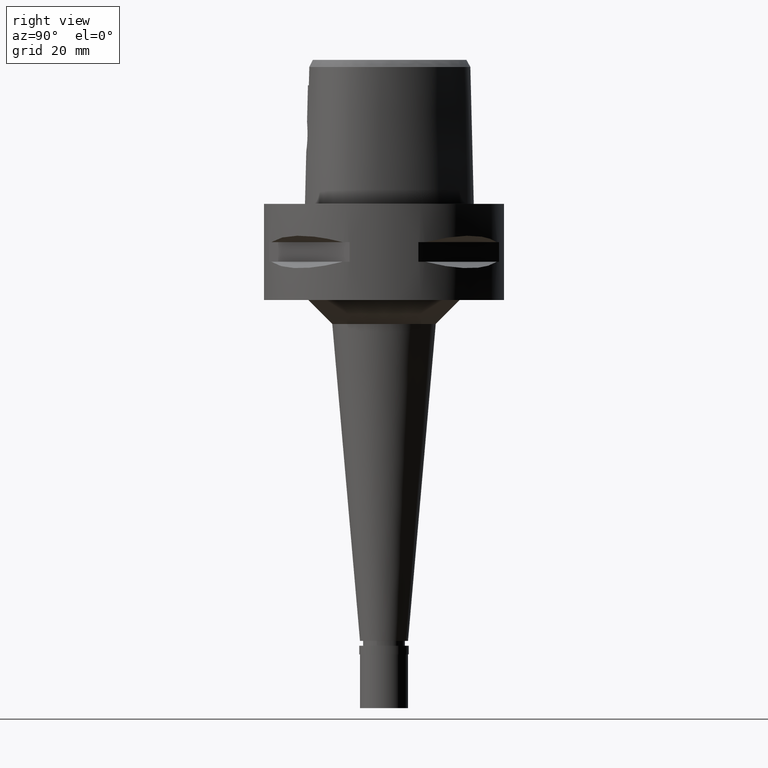
[diagram: clean part render]
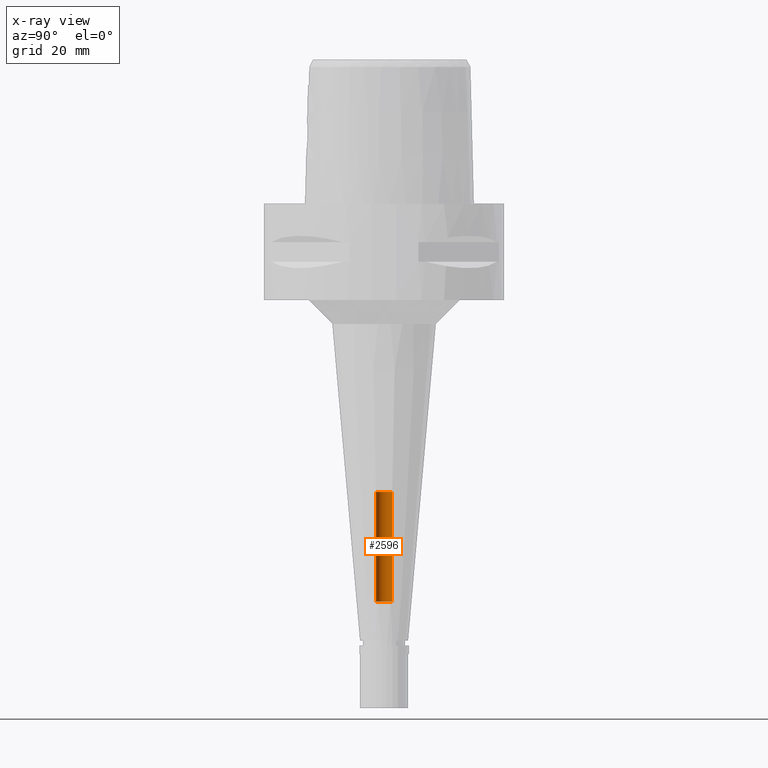
[diagram: x-ray — body ghosted, one internal face saturated and labeled with its STEP entity id]
A machine part, right view, then the same camera in x-ray: the body is ghosted and one INTERNAL B-rep face — a face not visible from any outside direction — is saturated and labeled: STEP entity #2596.
In plain terms, the highlighted cylindrical surface (edge-blend (fillet) strip) has radius 1.7 mm, axis along (0, 0, -1).
Its self-contained STEP definition (entity closure, byte-faithful):
#15 = AXIS2_PLACEMENT_3D ( 'NONE', #3494, #4583, #1329 ) ;
#97 = EDGE_CURVE ( 'NONE', #2903, #3445, #351, .T. ) ;
#161 = DIRECTION ( 'NONE',  ( 0.0000000000000000000, 0.0000000000000000000, -1.000000000000000000 ) ) ;
#351 = LINE ( 'NONE', #3286, #2826 ) ;
#445 = CARTESIAN_POINT ( 'NONE',  ( 0.0000000000000000000, 1.699999999999999956, -60.00000000000000000 ) ) ;
#555 = DIRECTION ( 'NONE',  ( 0.0000000000000000000, -1.000000000000000000, 0.0000000000000000000 ) ) ;
#666 = ORIENTED_EDGE ( 'NONE', *, *, #97, .T. ) ;
#1050 = EDGE_CURVE ( 'NONE', #4033, #2260, #1116, .T. ) ;
#1116 = LINE ( 'NONE', #1374, #1815 ) ;
#1123 = CARTESIAN_POINT ( 'NONE',  ( 0.0000000000000000000, 1.699999999999999956, -82.79999999999999716 ) ) ;
#1329 = DIRECTION ( 'NONE',  ( 0.0000000000000000000, -1.000000000000000000, 0.0000000000000000000 ) ) ;
#1374 = CARTESIAN_POINT ( 'NONE',  ( 0.0000000000000000000, -1.699999999999999956, -82.79999999999999716 ) ) ;
#1518 = CARTESIAN_POINT ( 'NONE',  ( 0.0000000000000000000, 1.286675159523999830E-14, -60.00000000000000000 ) ) ;
#1539 = DIRECTION ( 'NONE',  ( 0.0000000000000000000, 0.0000000000000000000, 1.000000000000000000 ) ) ;
#1573 = AXIS2_PLACEMENT_3D ( 'NONE', #3087, #161, #555 ) ;
#1669 = CIRCLE ( 'NONE', #3542, 1.699999999999999956 ) ;
#1742 = EDGE_LOOP ( 'NONE', ( #4622, #3119, #4699, #666 ) ) ;
#1815 = VECTOR ( 'NONE', #2947, 1000.000000000000000 ) ;
#1933 = EDGE_CURVE ( 'NONE', #3445, #2260, #1669, .T. ) ;
#2245 = EDGE_CURVE ( 'NONE', #4033, #2903, #3681, .T. ) ;
#2260 = VERTEX_POINT ( 'NONE', #3182 ) ;
#2596 = ADVANCED_FACE ( 'NONE', ( #3819 ), #3889, .F. ) ;
#2826 = VECTOR ( 'NONE', #4726, 1000.000000000000000 ) ;
#2903 = VERTEX_POINT ( 'NONE', #1123 ) ;
#2947 = DIRECTION ( 'NONE',  ( 0.0000000000000000000, 0.0000000000000000000, 1.000000000000000000 ) ) ;
#3087 = CARTESIAN_POINT ( 'NONE',  ( 0.0000000000000000000, 1.286675159523999830E-14, 5.065000000000000391 ) ) ;
#3119 = ORIENTED_EDGE ( 'NONE', *, *, #1050, .F. ) ;
#3182 = CARTESIAN_POINT ( 'NONE',  ( 0.0000000000000000000, -1.699999999999999956, -60.00000000000000000 ) ) ;
#3286 = CARTESIAN_POINT ( 'NONE',  ( 0.0000000000000000000, 1.699999999999999956, -82.79999999999999716 ) ) ;
#3445 = VERTEX_POINT ( 'NONE', #445 ) ;
#3494 = CARTESIAN_POINT ( 'NONE',  ( 0.0000000000000000000, 1.286675159523999830E-14, -82.79999999999999716 ) ) ;
#3542 = AXIS2_PLACEMENT_3D ( 'NONE', #1518, #1539, #4777 ) ;
#3681 = CIRCLE ( 'NONE', #15, 1.699999999999999956 ) ;
#3819 = FACE_OUTER_BOUND ( 'NONE', #1742, .T. ) ;
#3889 = CYLINDRICAL_SURFACE ( 'NONE', #1573, 1.699999999999999956 ) ;
#4033 = VERTEX_POINT ( 'NONE', #4757 ) ;
#4583 = DIRECTION ( 'NONE',  ( 0.0000000000000000000, 0.0000000000000000000, -1.000000000000000000 ) ) ;
#4622 = ORIENTED_EDGE ( 'NONE', *, *, #1933, .T. ) ;
#4699 = ORIENTED_EDGE ( 'NONE', *, *, #2245, .T. ) ;
#4726 = DIRECTION ( 'NONE',  ( 0.0000000000000000000, 0.0000000000000000000, 1.000000000000000000 ) ) ;
#4757 = CARTESIAN_POINT ( 'NONE',  ( 0.0000000000000000000, -1.699999999999999956, -82.79999999999999716 ) ) ;
#4777 = DIRECTION ( 'NONE',  ( 0.0000000000000000000, 1.000000000000000000, 0.0000000000000000000 ) ) ;